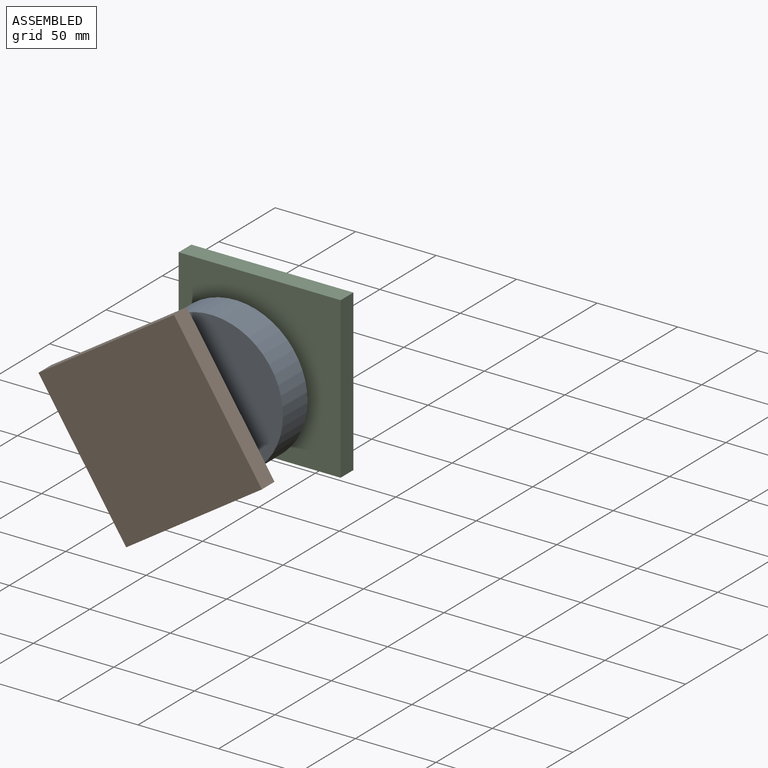
[diagram: assembled view]
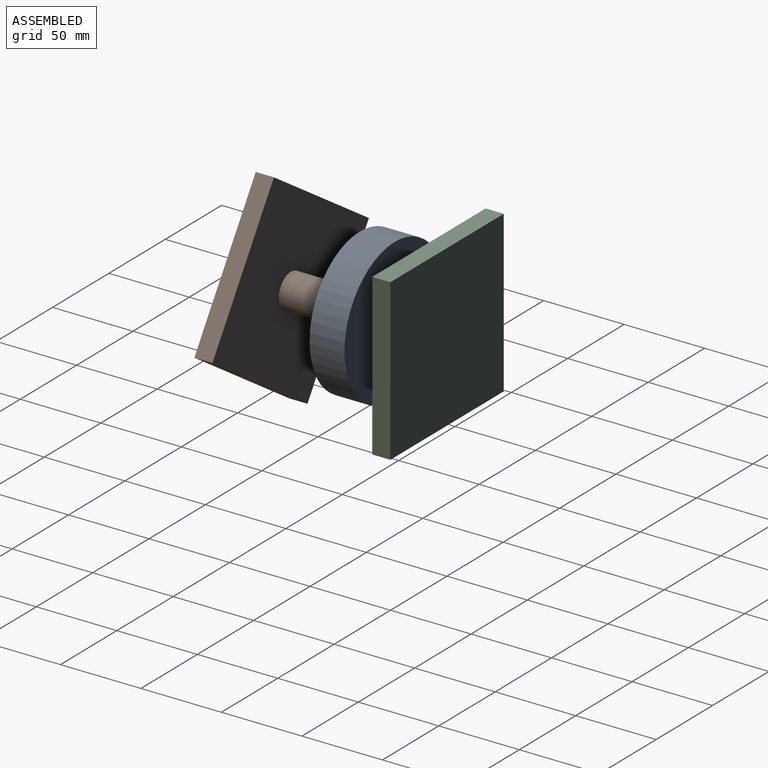
[diagram: assembled view, second angle]
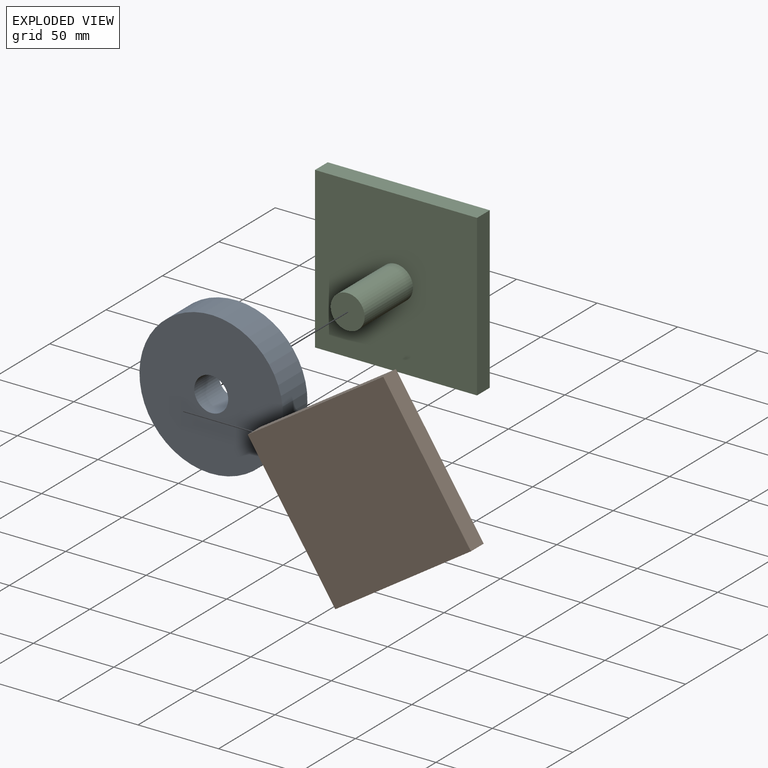
[diagram: exploded view]
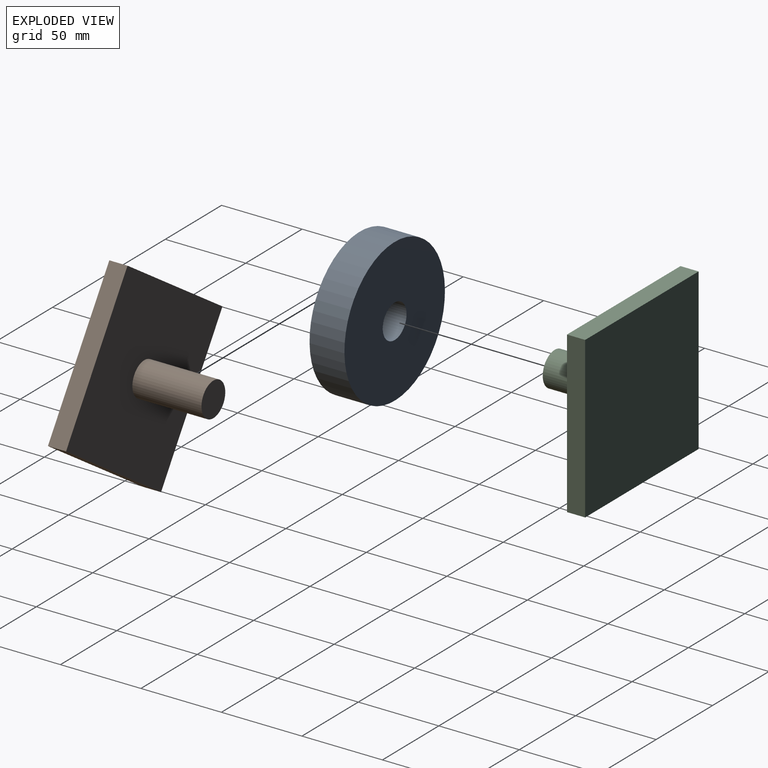
[diagram: exploded view, second angle]
ASSEMBLY  parts=3 mates=2
PART A: 4 faces, bbox 89.2x21.7x89.2 mm
  f0: cylinder r=10.55mm len=21.66mm, axis (0,1,0), area 1436mm2, adj f2,f3
  f1: cylinder r=44.59mm len=89.17mm, axis (0,1,0), area 6066.7mm2, adj f2,f3
  f2: plane 89.17x89.17mm, normal (0,-1,0), area 5895.1mm2, adj f0,f1
  f3: plane 89.17x89.17mm, normal (0,1,0), area 5895.1mm2, adj f0,f1
PART B: 8 faces, bbox 100.6x54.2x99.7 mm
  f0: plane 100.63x11.28mm, normal (0,0,1), area 1134.9mm2, adj f1,f3,f4,f5
  f1: plane 99.67x11.28mm, normal (-1,0,0), area 1124mm2, adj f0,f2,f4,f5
  f2: plane 100.63x11.28mm, normal (0,0,-1), area 1134.9mm2, adj f1,f3,f4,f5
  f3: plane 99.67x11.28mm, normal (1,0,0), area 1124mm2, adj f0,f2,f4,f5
  f4: plane 100.63x99.67mm, normal (0,-1,0), area 9680mm2, adj f0,f1,f2,f3,f6
  f5: plane 100.63x99.67mm, normal (0,1,0), area 10030.3mm2, adj f0,f1,f2,f3
  f6: cylinder r=10.56mm len=42.93mm, axis (0,1,0), area 2848mm2, adj f4,f7
  f7: plane 21.12x21.12mm, normal (0,-1,0), area 350.3mm2, adj f6
PART C: same geometry as B
PLACE A rot(axis=(-0.21,0,-0.98),180deg) t=(67.63,-30.07,26.82)mm
PLACE B rot(axis=(0.29,0,-0.96),180deg) t=(114.78,-84.28,-33.39)mm
PLACE C rot(axis=(0,1,0),0deg) t=(25.59,24.13,-59.94)mm fixed
MATE cylindrical A.f0 <-> C.f6  axis (0,1,0) through (41.45,-8.42,49.85)mm
MATE revolute C.f6 <-> A.f0  axis (0,-1,0) through (41.45,-30.07,49.85)mm
